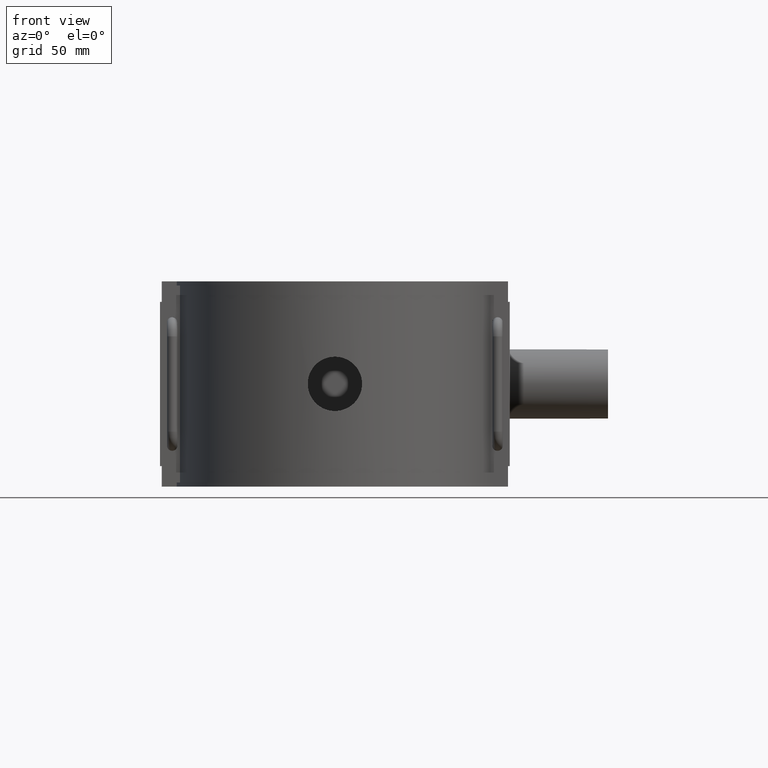
[diagram: clean part render]
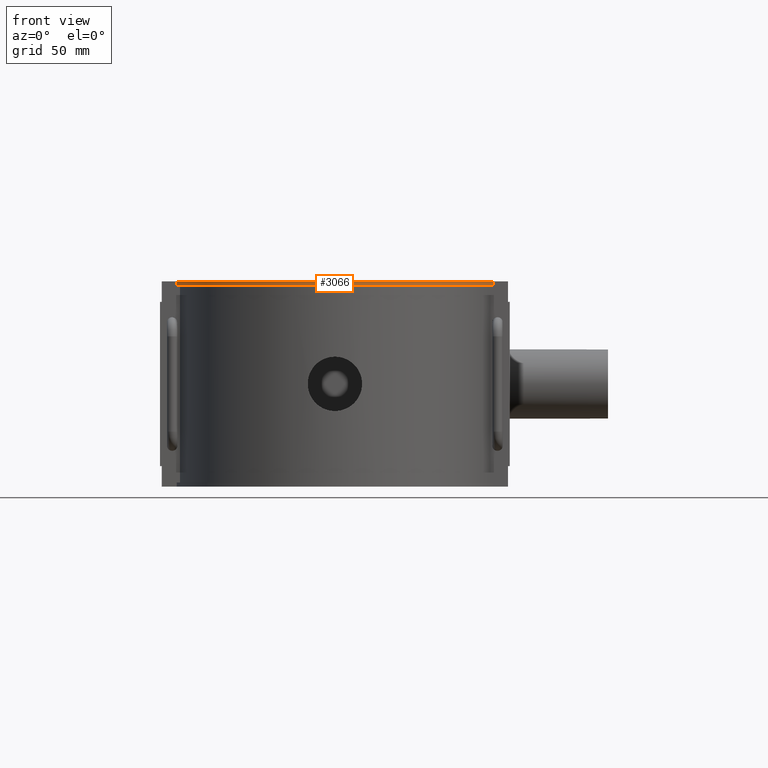
[diagram: same view with one face highlighted and labeled with its STEP entity id]
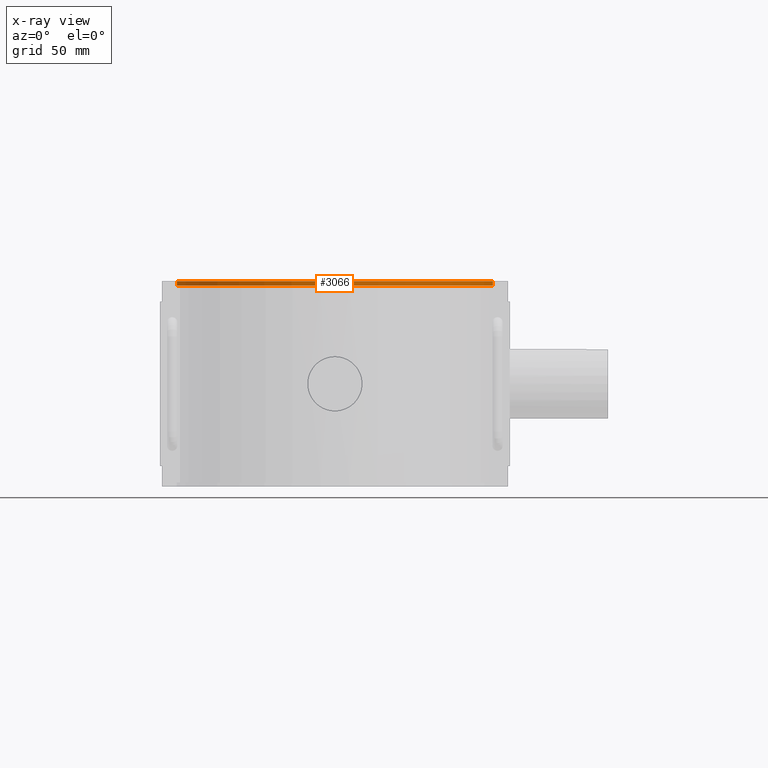
[diagram: x-ray of the same camera — body ghosted, the highlighted face saturated]
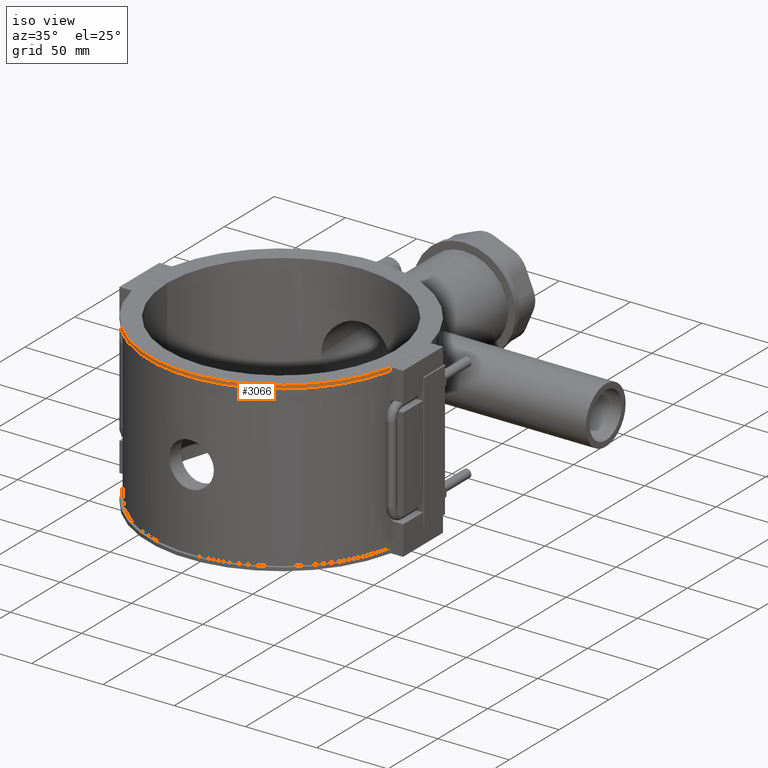
[diagram: same view with one face highlighted and labeled with its STEP entity id]
A machine part, front view. The second image highlights one B-rep face of the part: STEP entity #3066.
The next image is the same camera in x-ray: the body ghosted, the highlighted face saturated — about 0% of this face is hidden behind the body in this view.
A second angle (iso view) of the same face is appended — the face is thin or edge-on in the first view.
In plain terms, the highlighted cylindrical surface (partial cylindrical patch) has radius 93.024 mm, axis along (0, 0, -1).
Its self-contained STEP definition (entity closure, byte-faithful):
#110=LINE('',#5207,#389);
#122=LINE('',#5271,#401);
#389=VECTOR('',#3724,2.36);
#401=VECTOR('',#3756,2.36);
#751=CIRCLE('',#3291,93.024);
#752=CIRCLE('',#3292,93.024);
#919=FACE_OUTER_BOUND('',#1111,.T.);
#1111=EDGE_LOOP('',(#2318,#2319,#2320,#2321));
#1416=VERTEX_POINT('',#5204);
#1417=VERTEX_POINT('',#5206);
#1434=VERTEX_POINT('',#5267);
#1435=VERTEX_POINT('',#5269);
#1752=EDGE_CURVE('',#1416,#1417,#110,.T.);
#1771=EDGE_CURVE('',#1417,#1434,#751,.T.);
#1772=EDGE_CURVE('',#1435,#1416,#752,.T.);
#1773=EDGE_CURVE('',#1434,#1435,#122,.T.);
#2318=ORIENTED_EDGE('',*,*,#1771,.F.);
#2319=ORIENTED_EDGE('',*,*,#1752,.F.);
#2320=ORIENTED_EDGE('',*,*,#1772,.F.);
#2321=ORIENTED_EDGE('',*,*,#1773,.F.);
#2982=CYLINDRICAL_SURFACE('',#3290,93.024);
#3066=ADVANCED_FACE('',(#919),#2982,.T.);
#3290=AXIS2_PLACEMENT_3D('',#5266,#3750,#3751);
#3291=AXIS2_PLACEMENT_3D('',#5268,#3752,#3753);
#3292=AXIS2_PLACEMENT_3D('',#5270,#3754,#3755);
#3724=DIRECTION('',(0.,0.,1.));
#3750=DIRECTION('center_axis',(0.,0.,-1.));
#3751=DIRECTION('ref_axis',(-0.976614427290077,-0.21499828001376,0.));
#3752=DIRECTION('center_axis',(0.,0.,1.));
#3753=DIRECTION('ref_axis',(-0.976614427290077,-0.21499828001376,0.));
#3754=DIRECTION('center_axis',(0.,0.,-1.));
#3755=DIRECTION('ref_axis',(-0.976614427290077,-0.21499828001376,0.));
#3756=DIRECTION('',(0.,0.,-1.));
#5204=CARTESIAN_POINT('',(-90.8485804842321,-20.,56.64));
#5206=CARTESIAN_POINT('',(-90.8485804842321,-20.,59.));
#5207=CARTESIAN_POINT('',(-90.8485804842321,-20.,59.));
#5266=CARTESIAN_POINT('Origin',(0.,0.,59.));
#5267=CARTESIAN_POINT('',(90.8485804842321,-20.,59.));
#5268=CARTESIAN_POINT('Origin',(0.,0.,59.));
#5269=CARTESIAN_POINT('',(90.8485804842321,-20.,56.64));
#5270=CARTESIAN_POINT('Origin',(0.,0.,56.64));
#5271=CARTESIAN_POINT('',(90.8485804842321,-20.,59.));